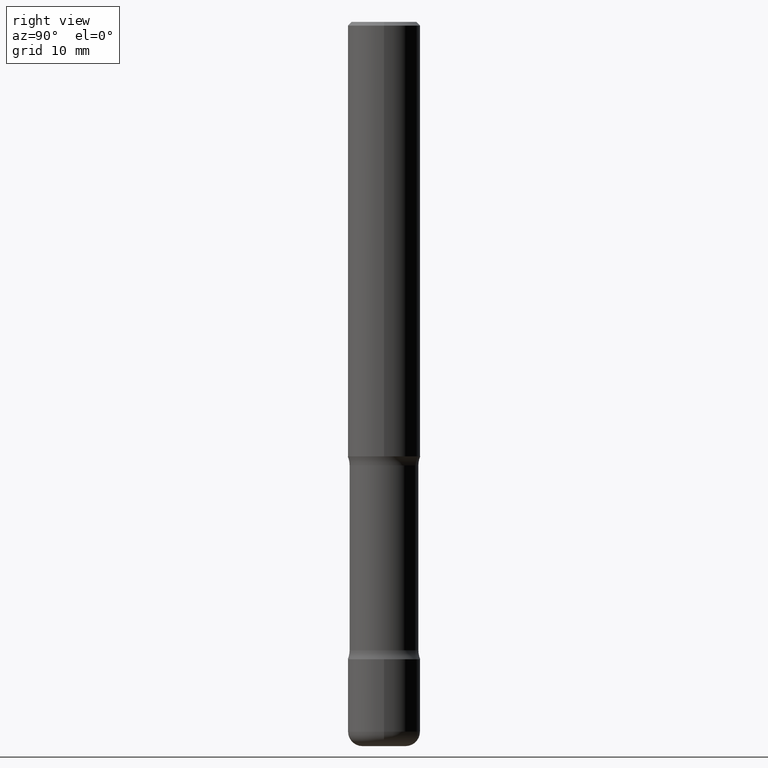
[diagram: clean part render]
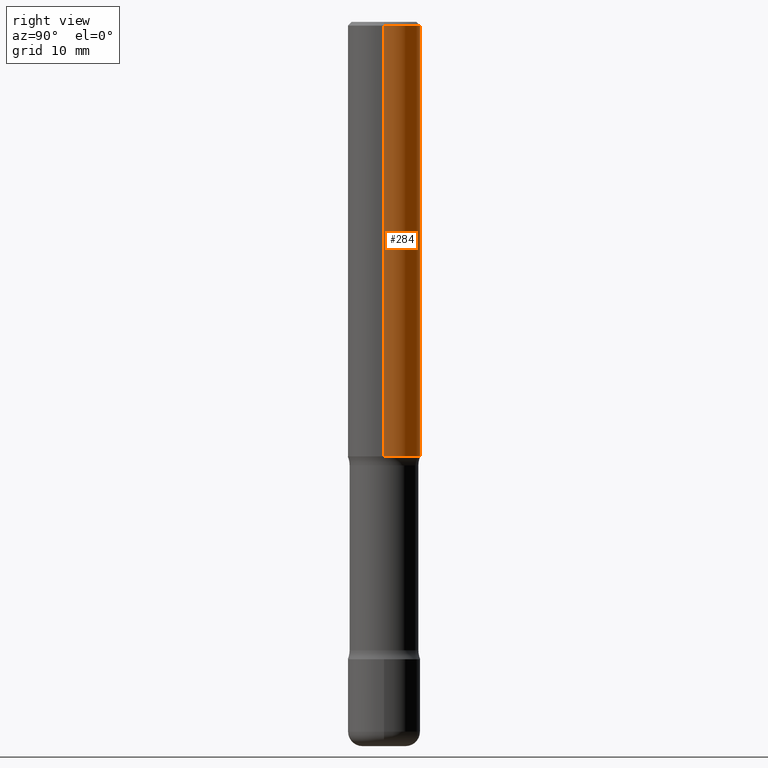
[diagram: same view with one face highlighted and labeled with its STEP entity id]
A machine part, right view. The second image highlights one B-rep face of the part: STEP entity #284.
In plain terms, the highlighted cylindrical surface (edge-blend (fillet) strip) has radius 5 mm, axis along (-0, 0, 1).
Its self-contained STEP definition (entity closure, byte-faithful):
#18 = ORIENTED_EDGE ( 'NONE', *, *, #54, .T. ) ;
#25 = DIRECTION ( 'NONE',  ( -2.445468806185136597E-29, 3.491481338843145583E-15, 1.000000000000000000 ) ) ;
#26 = EDGE_LOOP ( 'NONE', ( #18, #455, #400, #100 ) ) ;
#37 = CYLINDRICAL_SURFACE ( 'NONE', #522, 0.1968500000000000250 ) ;
#43 = DIRECTION ( 'NONE',  ( 1.000000000000000000, -6.982962677686265922E-15, 4.876176775795935793E-29 ) ) ;
#47 = CIRCLE ( 'NONE', #500, 0.1968500000000001082 ) ;
#54 = EDGE_CURVE ( 'NONE', #352, #395, #47, .T. ) ;
#76 = DIRECTION ( 'NONE',  ( -2.445468806185136877E-29, 3.491481338843145188E-15, 1.000000000000000000 ) ) ;
#77 = DIRECTION ( 'NONE',  ( -2.445468806185136877E-29, 3.491481338843145188E-15, 1.000000000000000000 ) ) ;
#81 = VECTOR ( 'NONE', #76, 39.37007874015748143 ) ;
#83 = CARTESIAN_POINT ( 'NONE',  ( -0.1968499999999999139, 1.304766576325677916E-15, -0.02000000000000006981 ) ) ;
#100 = ORIENTED_EDGE ( 'NONE', *, *, #367, .F. ) ;
#113 = CARTESIAN_POINT ( 'NONE',  ( 5.776686413970530874E-29, -8.247577218615281204E-15, -2.362200000000000522 ) ) ;
#195 = EDGE_CURVE ( 'NONE', #227, #360, #486, .T. ) ;
#204 = CARTESIAN_POINT ( 'NONE',  ( 0.1968499999999999139, -1.420318657638188530E-15, -0.02000000000000006981 ) ) ;
#218 = FACE_OUTER_BOUND ( 'NONE', #26, .T. ) ;
#227 = VERTEX_POINT ( 'NONE', #204 ) ;
#253 = LINE ( 'NONE', #261, #521 ) ;
#259 = DIRECTION ( 'NONE',  ( 1.000000000000000000, -6.982962677686266711E-15, 0.000000000000000000 ) ) ;
#261 = CARTESIAN_POINT ( 'NONE',  ( 0.1968500000000000250, -1.374596203102541608E-15, 9.598753983154300858E-30 ) ) ;
#284 = ADVANCED_FACE ( 'NONE', ( #218 ), #37, .T. ) ;
#309 = CARTESIAN_POINT ( 'NONE',  ( 4.890937612370289799E-31, -6.982962677686315028E-17, -0.02000000000000006981 ) ) ;
#331 = DIRECTION ( 'NONE',  ( 1.000000000000000000, -6.982962677686265133E-15, 0.000000000000000000 ) ) ;
#335 = CARTESIAN_POINT ( 'NONE',  ( -0.1968500000000001082, -2.760000047352312097E-15, -2.362200000000000522 ) ) ;
#352 = VERTEX_POINT ( 'NONE', #378 ) ;
#360 = VERTEX_POINT ( 'NONE', #83 ) ;
#367 = EDGE_CURVE ( 'NONE', #352, #227, #253, .T. ) ;
#378 = CARTESIAN_POINT ( 'NONE',  ( 0.1968500000000001082, -9.622173421717822812E-15, -2.362200000000000522 ) ) ;
#381 = DIRECTION ( 'NONE',  ( -2.445468806185136597E-29, 3.491481338843145583E-15, 1.000000000000000000 ) ) ;
#395 = VERTEX_POINT ( 'NONE', #335 ) ;
#396 = EDGE_CURVE ( 'NONE', #395, #360, #506, .T. ) ;
#400 = ORIENTED_EDGE ( 'NONE', *, *, #195, .F. ) ;
#401 = AXIS2_PLACEMENT_3D ( 'NONE', #309, #477, #259 ) ;
#455 = ORIENTED_EDGE ( 'NONE', *, *, #396, .T. ) ;
#466 = CARTESIAN_POINT ( 'NONE',  ( -0.1968500000000000250, 1.398703375343757393E-15, -9.682923725166783677E-30 ) ) ;
#477 = DIRECTION ( 'NONE',  ( -2.445468806185136597E-29, 3.491481338843145583E-15, 1.000000000000000000 ) ) ;
#486 = CIRCLE ( 'NONE', #401, 0.1968499999999999139 ) ;
#500 = AXIS2_PLACEMENT_3D ( 'NONE', #113, #25, #331 ) ;
#506 = LINE ( 'NONE', #466, #81 ) ;
#521 = VECTOR ( 'NONE', #77, 39.37007874015748143 ) ;
#522 = AXIS2_PLACEMENT_3D ( 'NONE', #523, #381, #43 ) ;
#523 = CARTESIAN_POINT ( 'NONE',  ( 0.000000000000000000, 0.000000000000000000, 0.000000000000000000 ) ) ;